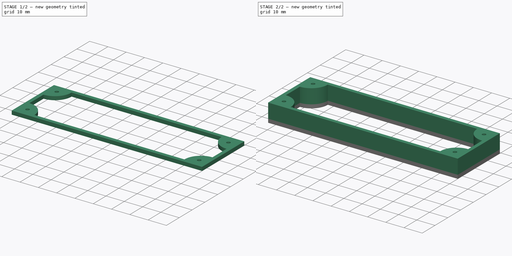
[diagram: build sequence overview — one tinted view per stage of 2, left to right]
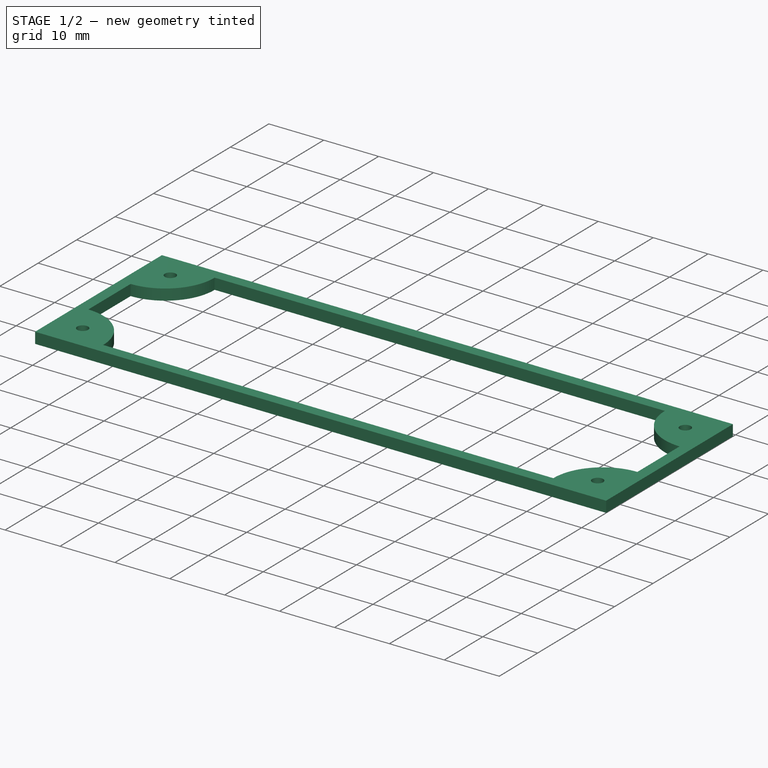
[diagram: stage 1 of 2 — iso view after this stage's code; geometry added in this stage tinted green]
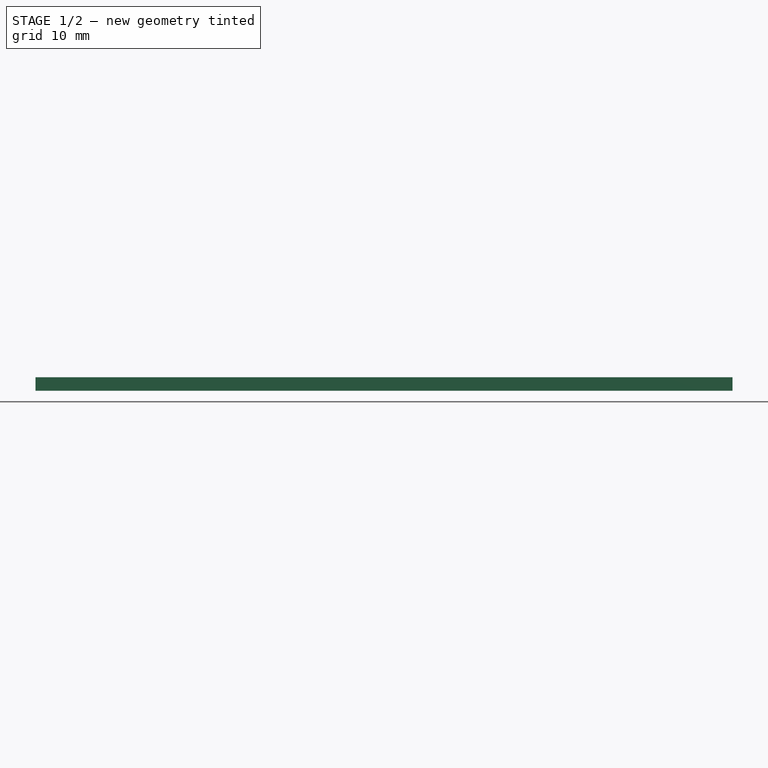
[diagram: stage 1 of 2 — front view after this stage's code; geometry added in this stage tinted green]
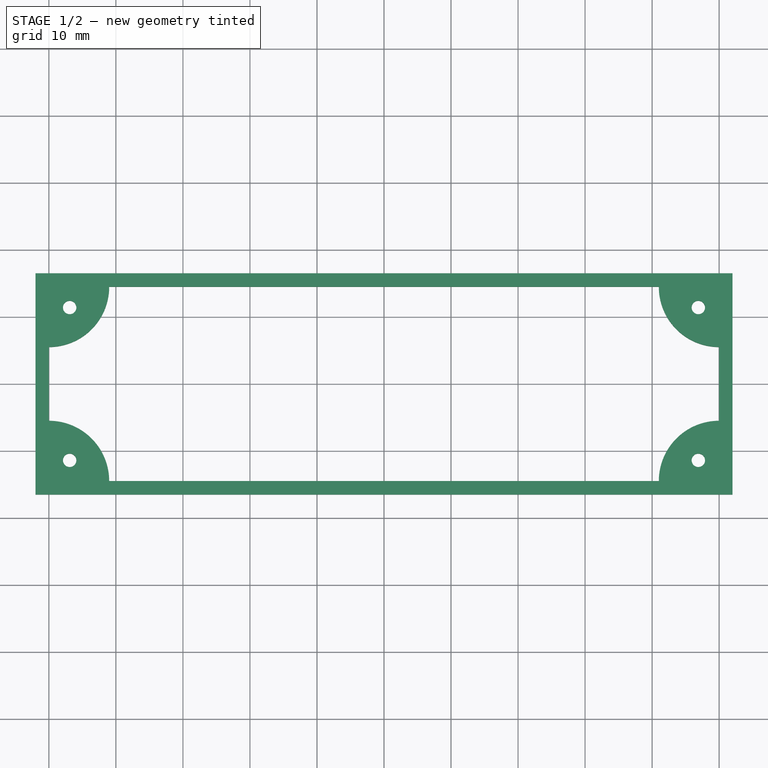
[diagram: stage 1 of 2 — top view after this stage's code; geometry added in this stage tinted green]
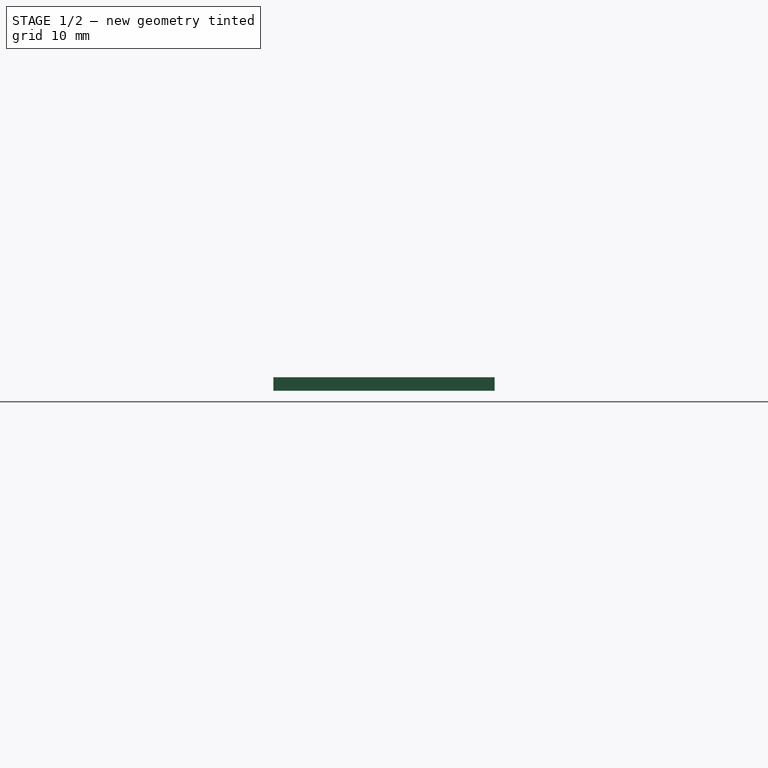
[diagram: stage 1 of 2 — right view after this stage's code; geometry added in this stage tinted green]
FCSTD DOCUMENT  (FreeCAD 0.18R16146 (Git))
Label: t2
License: All rights reserved
LicenseURL: http://en.wikipedia.org/wiki/All_rights_reserved
objects: PartDesign::Pad×2, Sketcher::SketchObject×1, PartDesign::Body×1
note: 6 computed .brp shape members not serialized (recipe doc carries the construction recipe); baked Part::Feature solids carry a one-line shape summary decoded from their .brp

FEATURE [Sketcher::SketchObject] Sketch
  MapMode = 5
  Support = -> [XY_Plane]
  sketch-geometry (16):
    g0: Circle CenterX=46.9 CenterY=-11.4 CenterZ=0 NormalX=0 NormalY=0 NormalZ=1 AngleXU=0 Radius=1
    g1: ArcOfCircle CenterX=-50 CenterY=14.5 CenterZ=0 NormalX=0 NormalY=0 NormalZ=1 AngleXU=0 Radius=9 StartAngle=4.71239 EndAngle=6.28319
    g2: ArcOfCircle CenterX=-50 CenterY=-14.5 CenterZ=0 NormalX=0 NormalY=0 NormalZ=1 AngleXU=0 Radius=9 StartAngle=0 EndAngle=1.5708
    g3: ArcOfCircle CenterX=50 CenterY=14.5 CenterZ=0 NormalX=0 NormalY=0 NormalZ=1 AngleXU=0 Radius=9 StartAngle=3.14159 EndAngle=4.71239
    g4: ArcOfCircle CenterX=50 CenterY=-14.5 CenterZ=0 NormalX=0 NormalY=0 NormalZ=1 AngleXU=0 Radius=9 StartAngle=1.5708 EndAngle=3.14159
    g5: LineSegment StartX=-52 StartY=16.5 StartZ=0 EndX=52 EndY=16.5 EndZ=0
    g6: LineSegment StartX=52 StartY=16.5 StartZ=0 EndX=52 EndY=-16.5 EndZ=0
    g7: LineSegment StartX=52 StartY=-16.5 StartZ=0 EndX=-52 EndY=-16.5 EndZ=0
    g8: LineSegment StartX=-52 StartY=-16.5 StartZ=0 EndX=-52 EndY=16.5 EndZ=0
    g9: LineSegment StartX=-50 StartY=5.5 StartZ=0 EndX=-50 EndY=-5.5 EndZ=0
    g10: LineSegment StartX=-41 StartY=-14.5 StartZ=0 EndX=41 EndY=-14.5 EndZ=0
    g11: LineSegment StartX=50 StartY=-5.5 StartZ=0 EndX=50 EndY=5.5 EndZ=0
    g12: LineSegment StartX=41 StartY=14.5 StartZ=0 EndX=-41 EndY=14.5 EndZ=0
    g13: Circle CenterX=-46.9 CenterY=-11.4 CenterZ=0 NormalX=0 NormalY=0 NormalZ=1 AngleXU=0 Radius=1
    g14: Circle CenterX=-46.9 CenterY=11.4 CenterZ=0 NormalX=0 NormalY=0 NormalZ=1 AngleXU=0 Radius=1
    g15: Circle CenterX=46.9 CenterY=11.4 CenterZ=0 NormalX=0 NormalY=0 NormalZ=1 AngleXU=0 Radius=1
  constraints (49):
    c: DistanceX(g0,g4) = 3.1
    c: DistanceY(g4,g0) = 3.1
    c: Radius(g1) = 9
    c: Radius(g3) = 9
    c: Radius(g4) = 9
    c: Coincident(g5,g6)
    c: Coincident(g7,g8)
    c: Coincident(g8,g5)
    c: Horizontal(g7)
    c: Vertical(g6)
    c: Vertical(g8)
    c: Symmetric(g5,g6,g-1)
    c: Coincident(g9,g1)
    c: Coincident(g9,g2)
    c: Vertical(g9)
    c: Coincident(g10,g2)
    c: Coincident(g10,g4)
    c: Horizontal(g10)
    c: Coincident(g11,g4)
    c: Coincident(g11,g3)
    c: Vertical(g11)
    c: Coincident(g12,g3)
    c: Coincident(g12,g1)
    c: Horizontal(g12)
    c: Horizontal(g5)
    c: DistanceY(g1,g5) = 2
    c: DistanceX(g5,g1) = 2
    c: DistanceY(g8,g8) = 33
    c: Perpendicular(g1,g9)
    c: Perpendicular(g1,g12)
    c: DistanceY(g7,g2) = 2
    c: Perpendicular(g2,g10)
    c: Perpendicular(g2,g9)
    c: Perpendicular(g4,g11)
    c: Perpendicular(g4,g10)
    c: Perpendicular(g3,g11)
    c: Perpendicular(g3,g12)
    c: DistanceX(g3,g5) = 2
    c: DistanceX(g5,g5) = 104
    c: Equal(g1,g2)
    c: Symmetric(g13,g15,g-1)
    c: Symmetric(g15,g0,g-1)
    c: Coincident(g6,g7)
    c: Radius(g13) = 1
    c: Equal(g13,g0)
    c: Equal(g0,g15)
    c: Equal(g14,g13)
    c: DistanceY(g14,g1) = 3.1
    c: DistanceX(g1,g14) = 3.1
FEATURE [PartDesign::Pad] Pad
  Length = 2
  Length2 = 100
  Profile = -> Sketch
  Type = 0
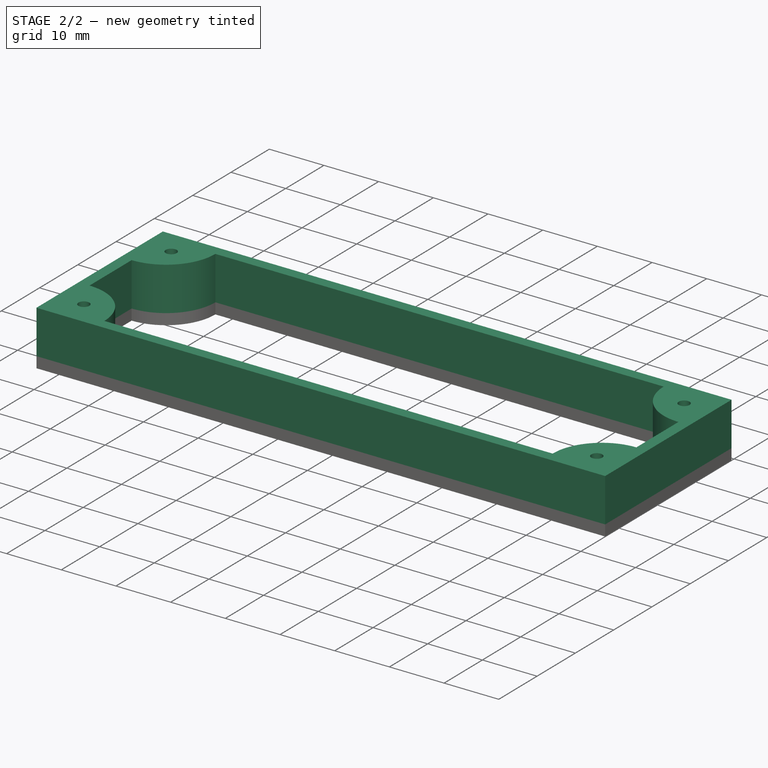
[diagram: stage 2 of 2 — iso view after this stage's code; geometry added in this stage tinted green]
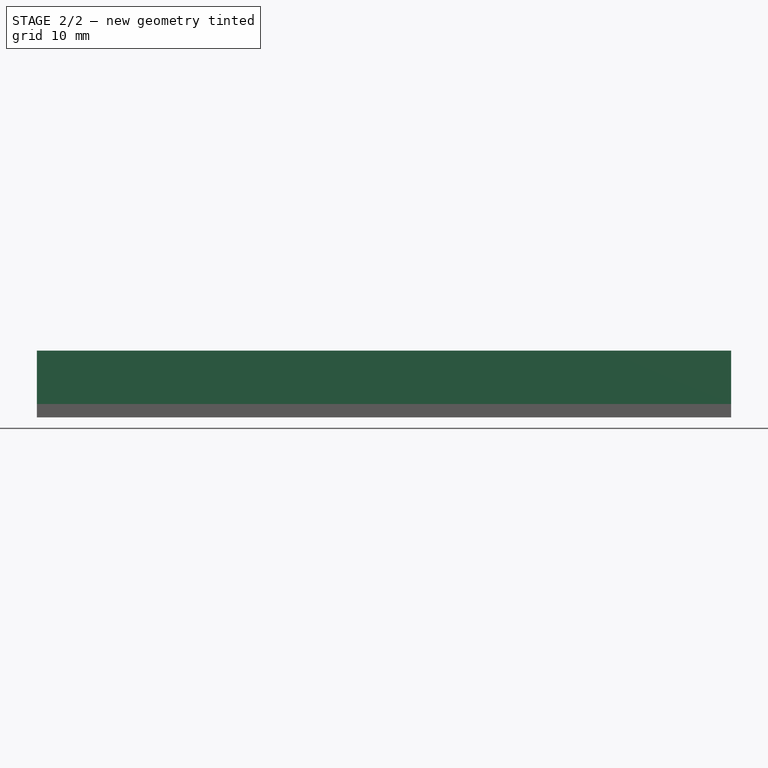
[diagram: stage 2 of 2 — front view after this stage's code; geometry added in this stage tinted green]
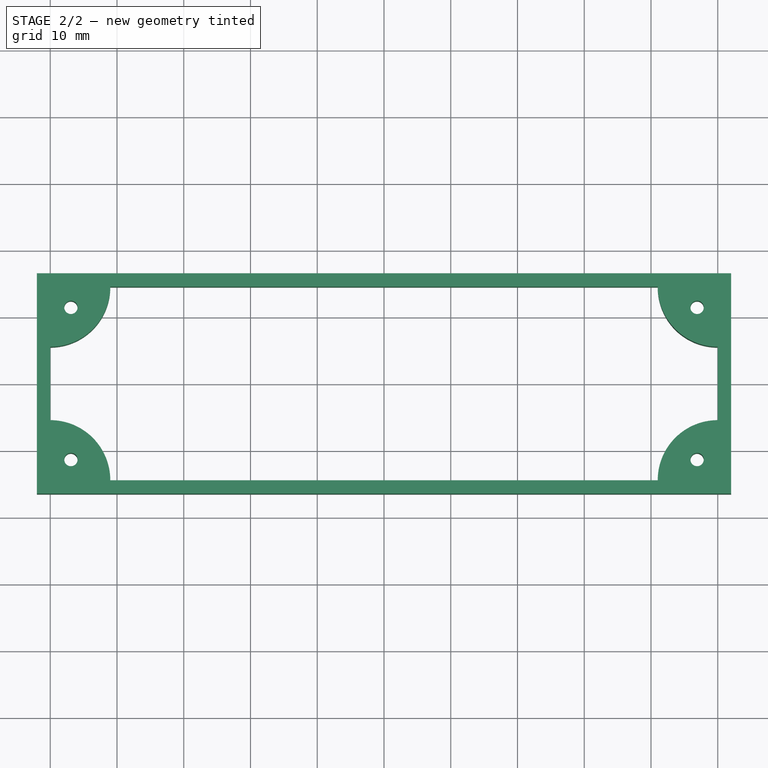
[diagram: stage 2 of 2 — top view after this stage's code; geometry added in this stage tinted green]
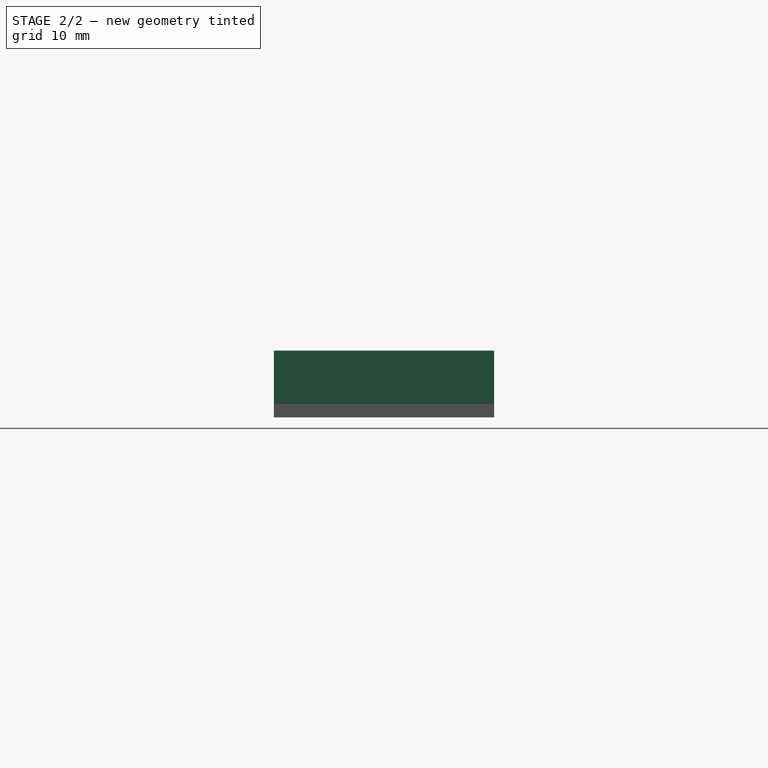
[diagram: stage 2 of 2 — right view after this stage's code; geometry added in this stage tinted green]
FEATURE [PartDesign::Pad] Pad001
  BaseFeature = -> Pad
  Length = 10
  Length2 = 100
  Profile = -> Sketch
  Type = 0
FEATURE [PartDesign::Body] Body
  Group = -> [Sketch,Pad,Pad001]
  Origin = -> Origin
  Tip = -> Pad001
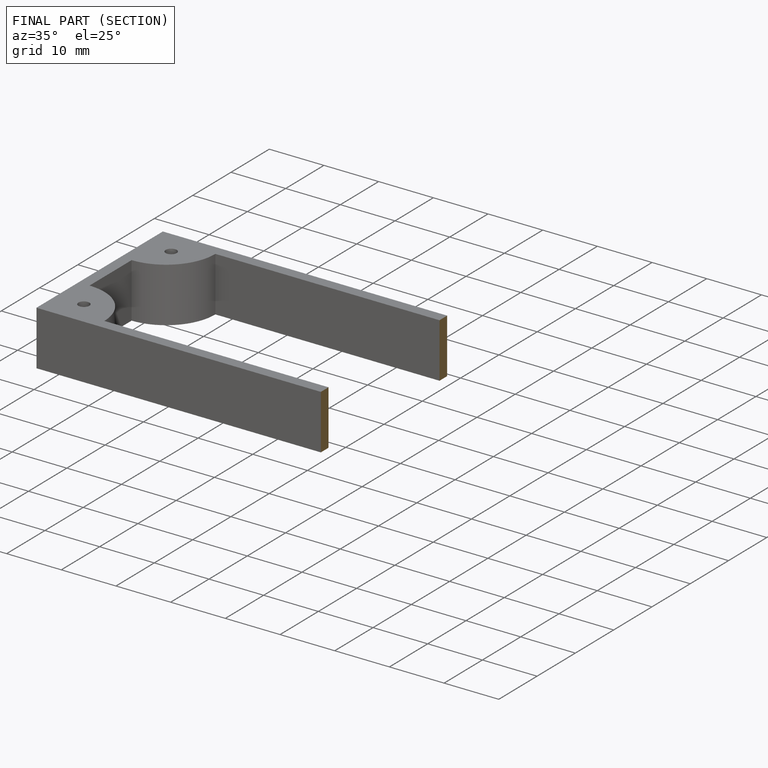
[diagram: finished part — half-section view (interior)]
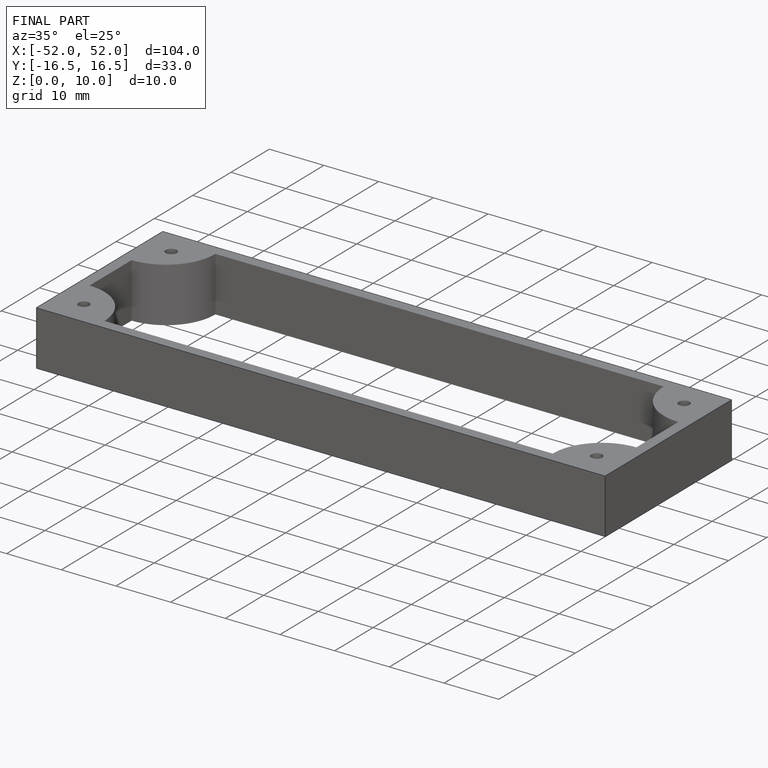
[diagram: finished part — iso view with bounding-box wireframe]
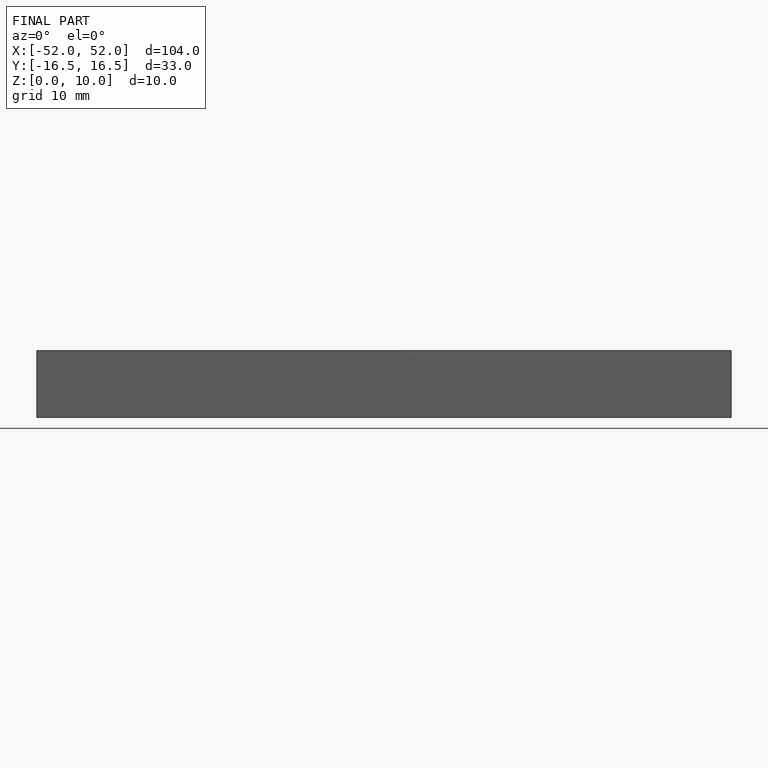
[diagram: finished part — front view with bounding-box wireframe]
